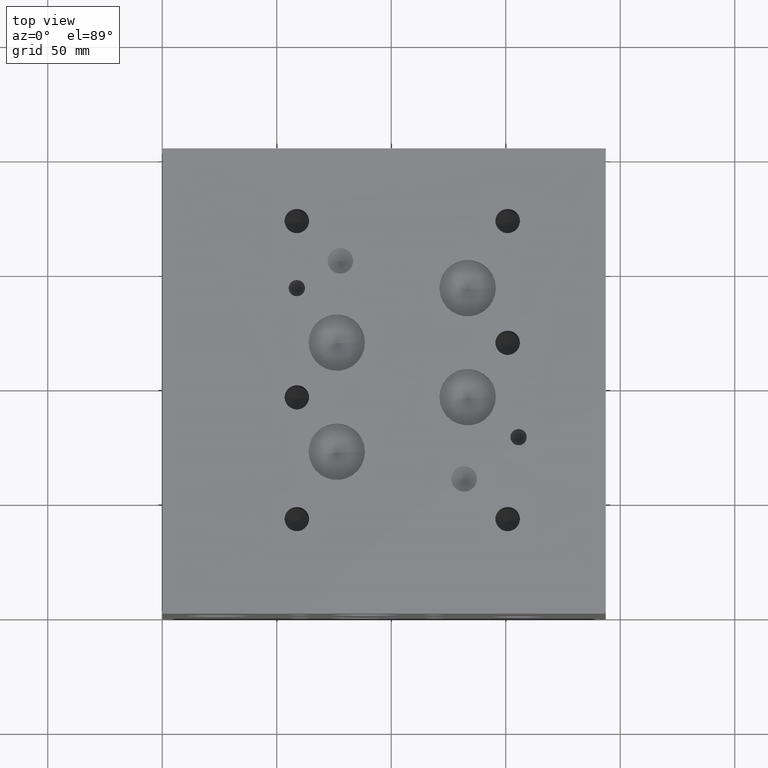
[diagram: clean part render]
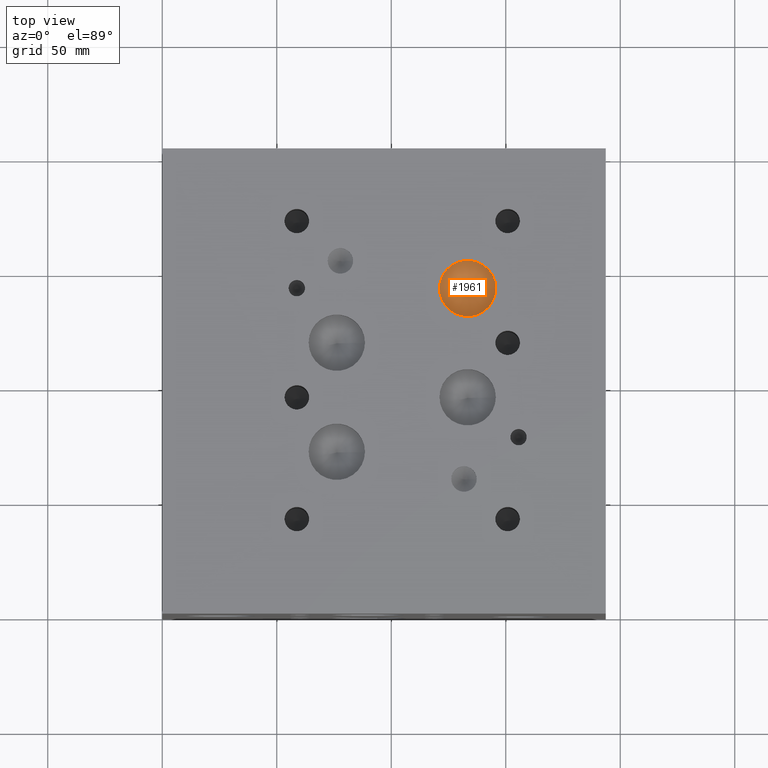
[diagram: same view with one face highlighted and labeled with its STEP entity id]
A machine part, top view. The second image highlights one B-rep face of the part: STEP entity #1961.
In plain terms, the highlighted conical surface has half-angle 60 deg.
Its self-contained STEP definition (entity closure, byte-faithful):
#1945=CARTESIAN_POINT('',(133.350000000000020,142.087600000000010,141.742431600000000));
#1946=DIRECTION('',(0.0,0.0,1.0));
#1947=DIRECTION('',(1.0,0.0,0.0));
#1948=AXIS2_PLACEMENT_3D('',#1945,#1946,#1947);
#1949=CONICAL_SURFACE('',#1948,6.153149999999990,60.000000061904593);
#1950=CARTESIAN_POINT('',(145.656300000000020,142.087600000000010,145.294954400000020));
#1951=VERTEX_POINT('',#1950);
#1952=CARTESIAN_POINT('',(133.350000000000020,142.087600000000010,145.294954400000020));
#1953=DIRECTION('',(0.0,0.0,1.0));
#1954=DIRECTION('',(1.0,0.0,0.0));
#1955=AXIS2_PLACEMENT_3D('',#1952,#1953,#1954);
#1956=CIRCLE('',#1955,12.306299999999997);
#1957=EDGE_CURVE('',#1951,#1951,#1956,.T.);
#1958=ORIENTED_EDGE('',*,*,#1957,.T.);
#1959=EDGE_LOOP('',(#1958));
#1960=FACE_OUTER_BOUND('',#1959,.T.);
#1961=ADVANCED_FACE('',(#1960),#1949,.F.);